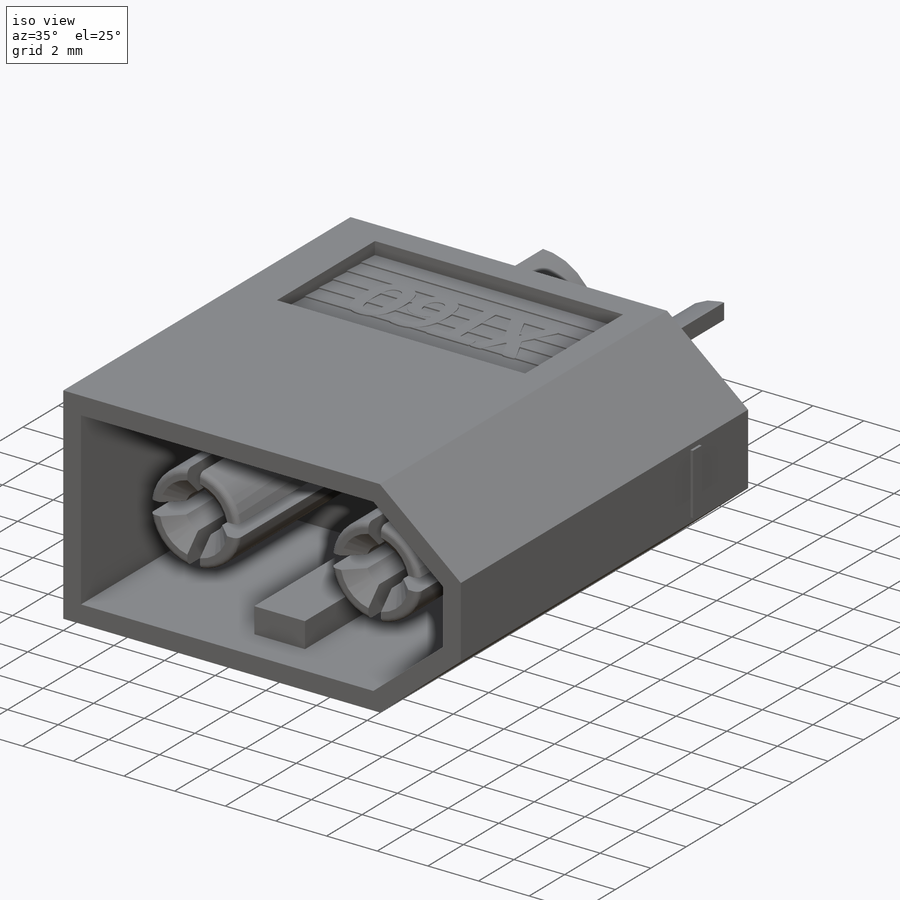
[diagram: iso view]
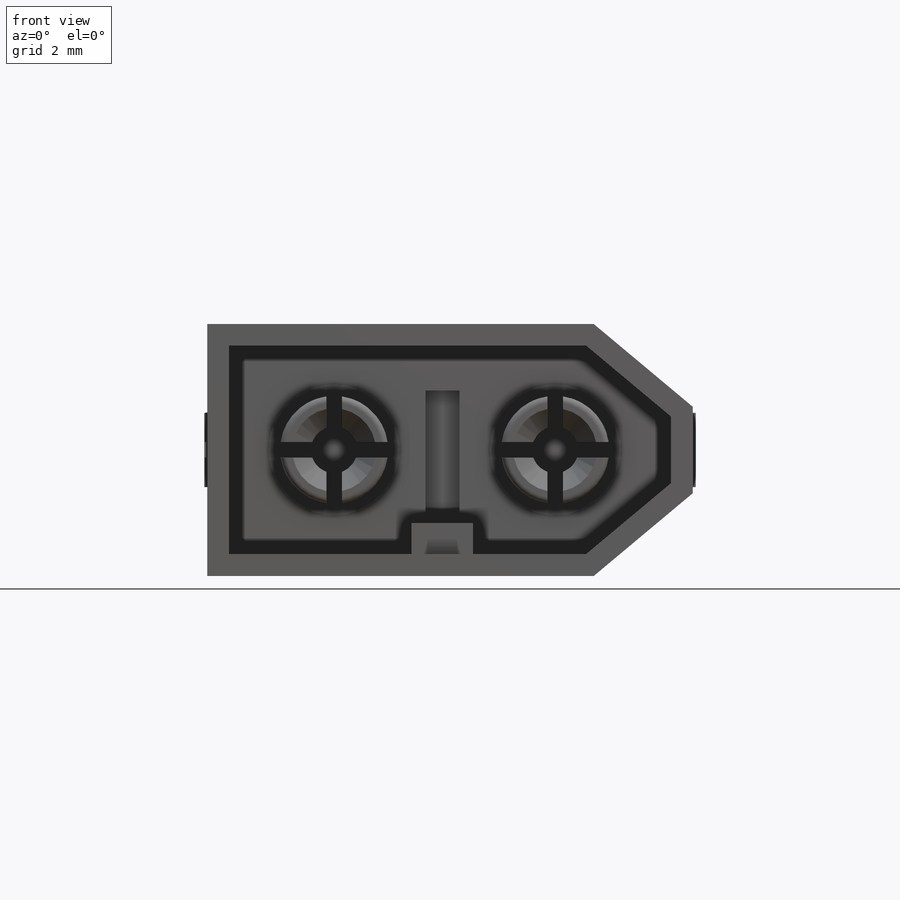
[diagram: front view]
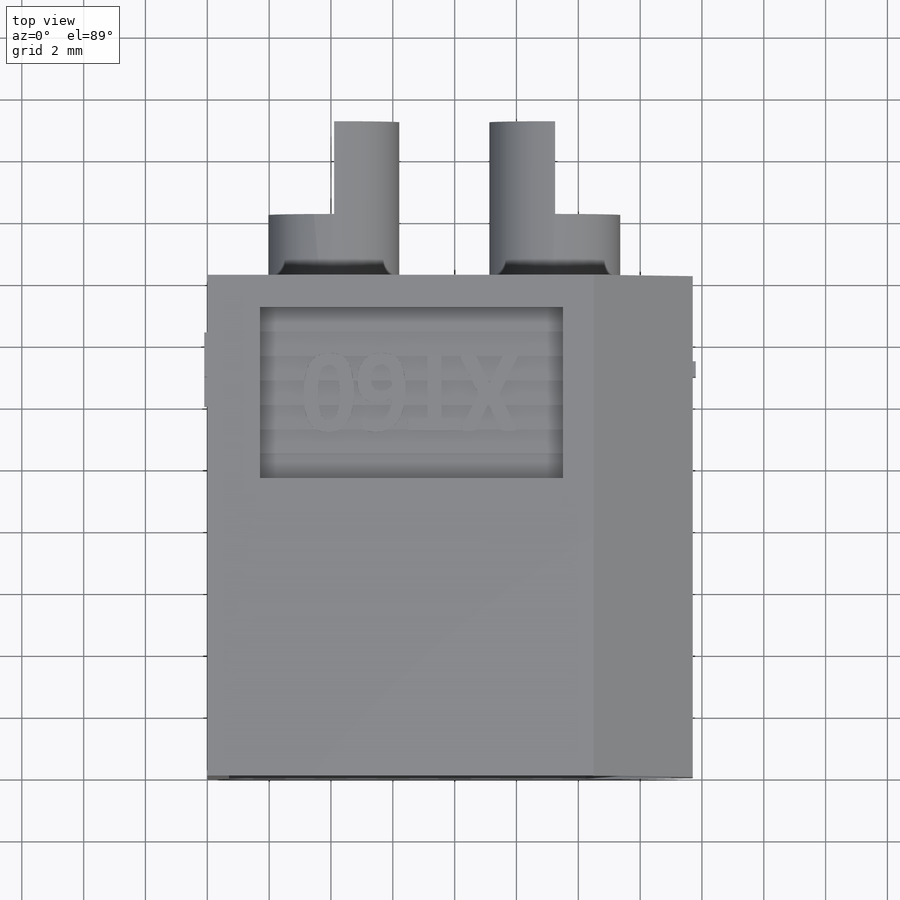
[diagram: top view]
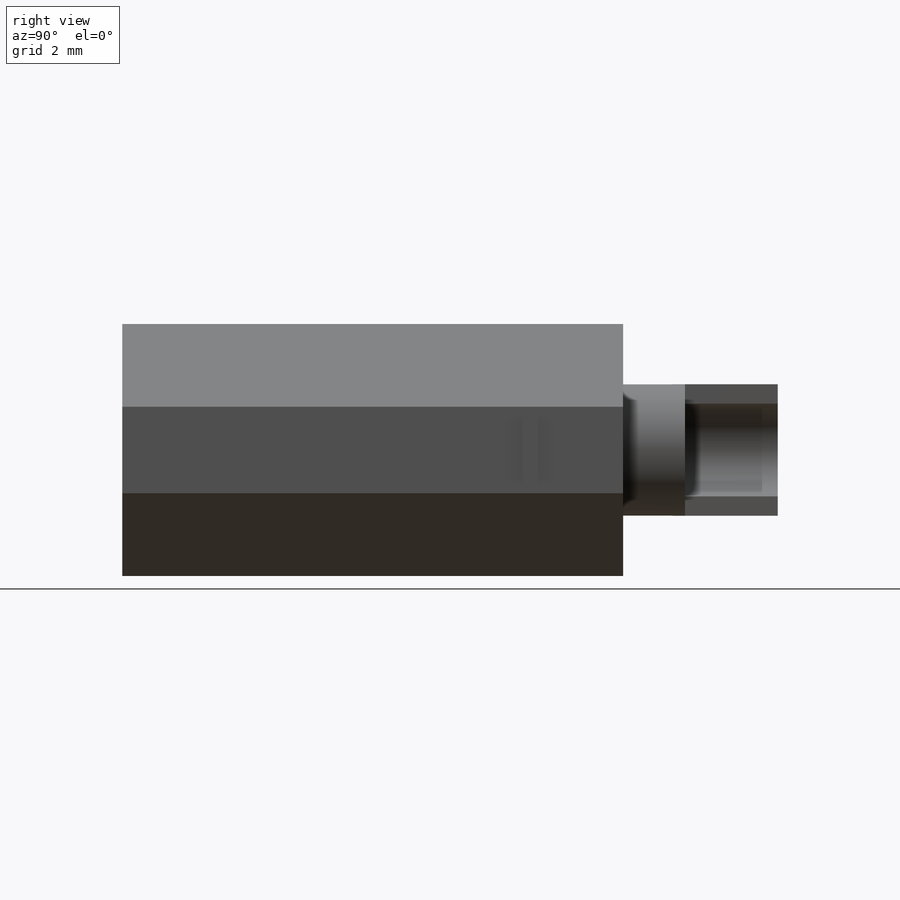
[diagram: right view]
SOLIDWORKS PART (.sldprt)
format: sldprt  version: not decoded by parser v0  size: 920,064 bytes
history: native  units: mm
features: sketch x16, extrude x8, cut_extrude x6, plane x5, material x1, hole x1, fillet x1, chamfer x1, mirror x1 (+8 scaffold rows collapsed)
feature tree (48):
  scaffold x8  (default folders/planes/origin — collapsed)
  material  "Náilon 101"
  plane  "Plano frontal"
  plane  "Plano superior"
  plane  "Plano direito"
  sketch  "Esboço1"  dims[c1.D1=8.15mm c1.D2=12.5mm c1.D3=15.7mm c1.D4=~4.037958mm c2.D4=45.0deg c3.D4=2.8mm]
  extrude  "Ressalto-extrusão1"  Depth=16.2mm
  sketch  "Esboço2"  dims[D1=0.7mm]
  cut_extrude  "Corte-extrusão1"  Depth=9.3mm
  sketch  "Esboço3"  dims[D1=0.5mm D2=2.4mm D3=3.0mm]
  extrude  "Ressalto-extrusão2"  Depth=0.1mm
  sketch  "Esboço4"  dims[D1=~2.736117mm]
  extrude  "Ressalto-extrusão3"  [1 undecoded]
  sketch  "Esboço5"  dims[D1=5.85mm D2=7.15mm D3=4.1mm]
  cut_extrude  "Corte-extrusão2"  Depth=3.5mm
  sketch  "Esboço6"  dims[D1=4.25mm]
  cut_extrude  "Corte-extrusão3"  [1 undecoded]
  sketch  "Esboço7"
  extrude  "Ressalto-extrusão4"  Depth=5mm
  hole  "Furo de diâmetro Ø3.0 (3)1"  Diameter=3mm Depth=9mm
  sketch  "Esboço9"
  sketch  "Esboço8"  dims[hole-wizard template sketch: 47 standard entries collapsed; hole parameters kept: c15.Hole Depth=9.0mm c15.D3=~14.816244mm c15.Drill Angle=118.0deg]
  sketch  "Esboço10"  dims[D1=3.0mm]
  cut_extrude  "Corte-extrusão4"  [1 undecoded]
  sketch  "Esboço11"  dims[D1=3.5mm D2=1.5mm D3=0.25mm D4=0.25mm D5=0.25mm D6=0.25mm]
  extrude  "Ressalto-extrusão5"  Depth=1.5mm
  fillet  "Filete1"  Radius=0.2mm
  chamfer  "Chanfro1"  Distance=0.6mm Angle=45deg
  sketch  "Esboço12"  dims[D1=0.5mm D2=0.79mm D3=0.05mm D4=1.05mm D6=0.79mm D5=7.0]
  cut_extrude  "Corte-extrusão5"  Depth=9.8mm
  mirror  "Espelhar1"
  plane  "Plano1"
  sketch  "Esboço13"  dims[D1=7.0mm D2=2.5mm]
  extrude  "Ressalto-extrusão6"  [1 undecoded]
  plane  "Plano2"
  sketch  "Esboço14"  dims[D1=3.3mm D2=7.6mm]
  extrude  "Ressalto-extrusão7"  [1 undecoded]
  sketch  "Esboço15"  dims[D1=5.9mm D2=1.0mm D3=2.0mm]
  extrude  "Ressalto-extrusão8"  Depth=1.35mm
  sketch  "Esboço16"  dims[D1=1.1mm D2=4.1mm D3=0.2mm]
  cut_extrude  "Corte-extrusão6"  Depth=1mm
decode coverage: 26 of 34 modeling features carry decoded parameters
note: ~ marks probable driven/reference dimensions
note: 5 parameter values undecoded
summary: no parameter record found for 5 features
note: suppression state not decoded; provenance and decode notes live in map.json
